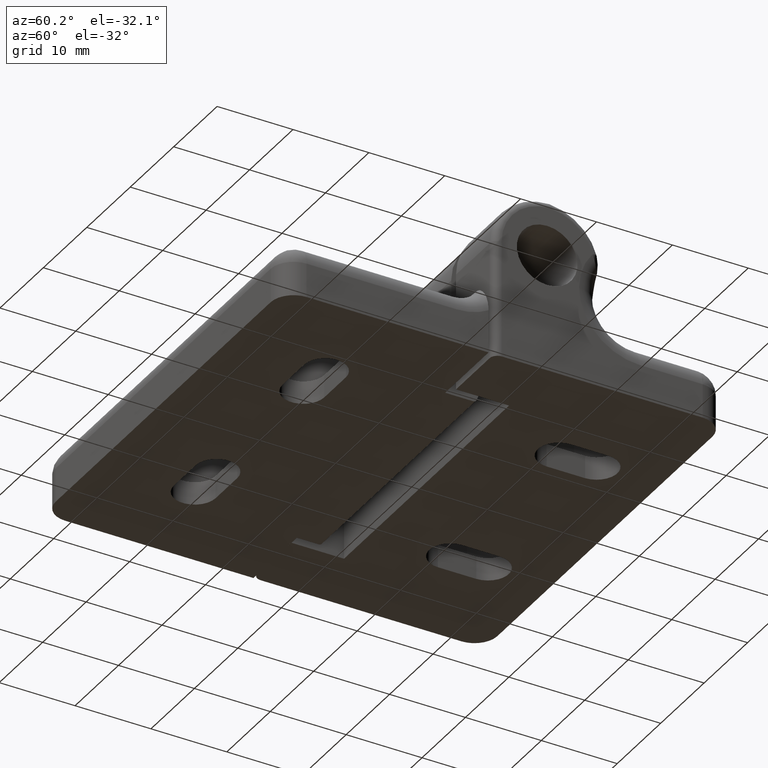
[diagram: clean part render]
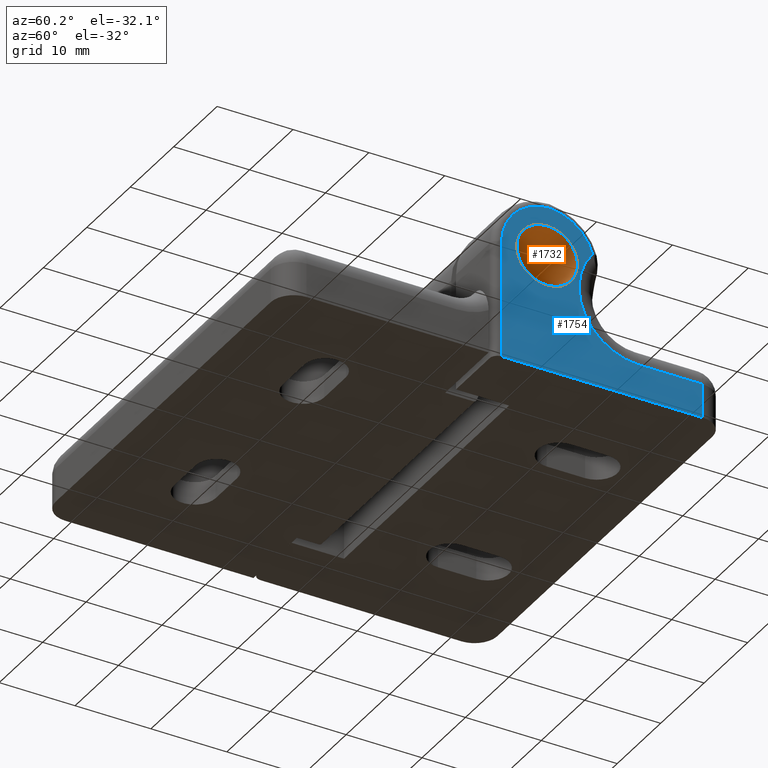
[diagram: same view with the hole feature highlighted: cylindrical wall and planar end face, labeled with their STEP entity ids]
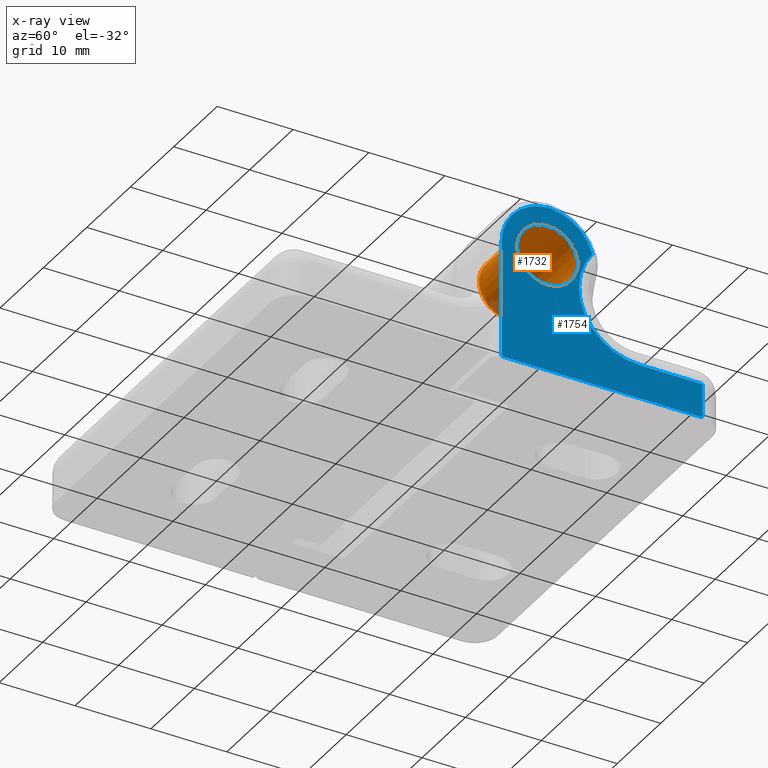
[diagram: x-ray of the same camera — body ghosted, the hole faces saturated]
A machine part, auxiliary view. The highlighted faces form one hole feature of diameter 8 mm: the cylindrical wall (entity #1732, orange) and its adjacent planar end face (entity #1754, blue) — they share a circular edge in the B-rep.
The next image is the same camera in x-ray (body ghosted, the hole faces saturated) — the bore reads through the body.
Wall:
#45=FACE_BOUND('',#601,.T.);
#425=CYLINDRICAL_SURFACE('',#1880,4.);
#490=FACE_OUTER_BOUND('',#600,.T.);
#600=EDGE_LOOP('',(#1395));
#601=EDGE_LOOP('',(#1396));
#708=CIRCLE('',#1881,4.);
#709=CIRCLE('',#1882,4.);
#839=VERTEX_POINT('',#2786);
#840=VERTEX_POINT('',#2788);
#1038=EDGE_CURVE('',#839,#839,#708,.T.);
#1039=EDGE_CURVE('',#840,#840,#709,.T.);
#1395=ORIENTED_EDGE('',*,*,#1038,.T.);
#1396=ORIENTED_EDGE('',*,*,#1039,.F.);
#1732=ADVANCED_FACE('',(#490,#45),#425,.F.);
#1880=AXIS2_PLACEMENT_3D('',#2785,#2242,#2243);
#1881=AXIS2_PLACEMENT_3D('',#2787,#2244,#2245);
#1882=AXIS2_PLACEMENT_3D('',#2789,#2246,#2247);
#2242=DIRECTION('center_axis',(1.,0.,0.));
#2243=DIRECTION('ref_axis',(0.,-1.,0.));
#2244=DIRECTION('center_axis',(-1.,0.,0.));
#2245=DIRECTION('ref_axis',(0.,0.,-1.));
#2246=DIRECTION('center_axis',(-1.,0.,0.));
#2247=DIRECTION('ref_axis',(0.,0.,1.));
#2785=CARTESIAN_POINT('Origin',(28.99999999,21.9677756572818,15.9977729309299));
#2786=CARTESIAN_POINT('',(29.,21.9677756572818,19.9977729309299));
#2787=CARTESIAN_POINT('Origin',(29.,21.9677756572818,15.9977729309299));
#2788=CARTESIAN_POINT('',(37.75,21.9677756572818,19.9977729309299));
#2789=CARTESIAN_POINT('Origin',(37.75,21.9677756572818,15.9977729309299));
End face:
#49=FACE_BOUND('',#627,.T.);
#85=PLANE('',#1936);
#239=LINE('',#3005,#382);
#245=LINE('',#3028,#388);
#246=LINE('',#3030,#389);
#247=LINE('',#3032,#390);
#382=VECTOR('',#2391,26.5);
#388=VECTOR('',#2413,15.5);
#389=VECTOR('',#2414,4.5);
#390=VECTOR('',#2415,8.3);
#512=FACE_OUTER_BOUND('',#626,.T.);
#626=EDGE_LOOP('',(#1523,#1524,#1525,#1526,#1527,#1528,#1529));
#627=EDGE_LOOP('',(#1530));
#709=CIRCLE('',#1882,4.);
#740=CIRCLE('',#1937,6.5);
#741=CIRCLE('',#1938,8.);
#742=CIRCLE('',#1939,6.1);
#840=VERTEX_POINT('',#2788);
#901=VERTEX_POINT('',#3002);
#902=VERTEX_POINT('',#3004);
#910=VERTEX_POINT('',#3025);
#911=VERTEX_POINT('',#3026);
#912=VERTEX_POINT('',#3029);
#913=VERTEX_POINT('',#3031);
#914=VERTEX_POINT('',#3033);
#1039=EDGE_CURVE('',#840,#840,#709,.T.);
#1124=EDGE_CURVE('',#902,#901,#239,.T.);
#1135=EDGE_CURVE('',#910,#911,#740,.T.);
#1136=EDGE_CURVE('',#911,#902,#245,.T.);
#1137=EDGE_CURVE('',#901,#912,#246,.T.);
#1138=EDGE_CURVE('',#912,#913,#247,.T.);
#1139=EDGE_CURVE('',#913,#914,#741,.T.);
#1140=EDGE_CURVE('',#914,#910,#742,.T.);
#1523=ORIENTED_EDGE('',*,*,#1135,.T.);
#1524=ORIENTED_EDGE('',*,*,#1136,.T.);
#1525=ORIENTED_EDGE('',*,*,#1124,.T.);
#1526=ORIENTED_EDGE('',*,*,#1137,.T.);
#1527=ORIENTED_EDGE('',*,*,#1138,.T.);
#1528=ORIENTED_EDGE('',*,*,#1139,.T.);
#1529=ORIENTED_EDGE('',*,*,#1140,.T.);
#1530=ORIENTED_EDGE('',*,*,#1039,.T.);
#1754=ADVANCED_FACE('',(#512,#49),#85,.F.);
#1882=AXIS2_PLACEMENT_3D('',#2789,#2246,#2247);
#1936=AXIS2_PLACEMENT_3D('',#3024,#2409,#2410);
#1937=AXIS2_PLACEMENT_3D('',#3027,#2411,#2412);
#1938=AXIS2_PLACEMENT_3D('',#3034,#2416,#2417);
#1939=AXIS2_PLACEMENT_3D('',#3035,#2418,#2419);
#2246=DIRECTION('center_axis',(-1.,0.,0.));
#2247=DIRECTION('ref_axis',(0.,0.,1.));
#2391=DIRECTION('',(0.,1.,0.));
#2409=DIRECTION('center_axis',(-1.,0.,0.));
#2410=DIRECTION('ref_axis',(0.,0.,1.));
#2411=DIRECTION('center_axis',(1.,0.,0.));
#2412=DIRECTION('ref_axis',(0.,0.,1.));
#2413=DIRECTION('',(0.,0.,-1.));
#2414=DIRECTION('',(0.,0.,1.));
#2415=DIRECTION('',(0.,-1.,0.));
#2416=DIRECTION('center_axis',(-1.,0.,0.));
#2417=DIRECTION('ref_axis',(0.,0.,1.));
#2418=DIRECTION('center_axis',(1.,0.,0.));
#2419=DIRECTION('ref_axis',(0.,0.,1.));
#2788=CARTESIAN_POINT('',(37.75,21.9677756572818,19.9977729309299));
#2789=CARTESIAN_POINT('Origin',(37.75,21.9677756572818,15.9977729309299));
#3002=CARTESIAN_POINT('',(37.75,42.4677756572818,0.497772930929919));
#3004=CARTESIAN_POINT('',(37.75,15.9677756572818,0.497772930929919));
#3005=CARTESIAN_POINT('',(37.75,15.9677756572818,0.497772930929919));
#3024=CARTESIAN_POINT('Origin',(37.75,14.6427756572818,-0.602223998597282));
#3025=CARTESIAN_POINT('',(37.75,22.4395211150545,22.497711521474));
#3026=CARTESIAN_POINT('',(37.75,15.9677756572818,15.9977729309299));
#3027=CARTESIAN_POINT('Origin',(37.75,22.4677756572818,15.9977729309299));
#3028=CARTESIAN_POINT('',(37.75,15.9677756572818,15.9977729309299));
#3029=CARTESIAN_POINT('',(37.75,42.4677756572818,4.99777293092991));
#3030=CARTESIAN_POINT('',(37.75,42.4677756572818,0.497772930929919));
#3031=CARTESIAN_POINT('',(37.75,34.1677756572818,4.99777293092992));
#3032=CARTESIAN_POINT('',(37.75,42.4677756572818,4.99777293092991));
#3033=CARTESIAN_POINT('',(37.75,27.9485298067387,18.0297686632912));
#3034=CARTESIAN_POINT('Origin',(37.75,34.1677756572818,12.9977729309299));
#3035=CARTESIAN_POINT('Origin',(37.75,22.0677756572819,16.409049491551));